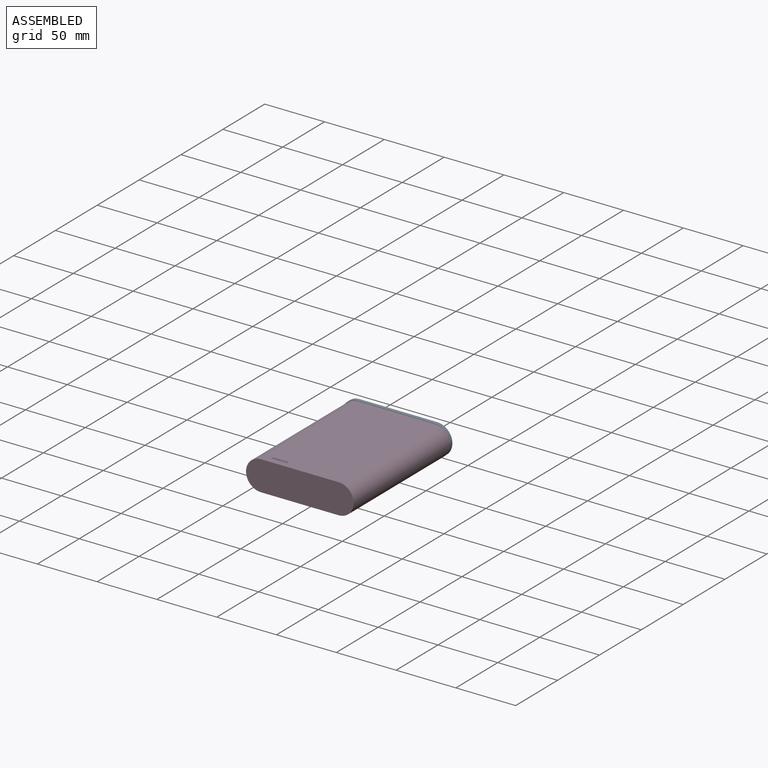
[diagram: assembled view]
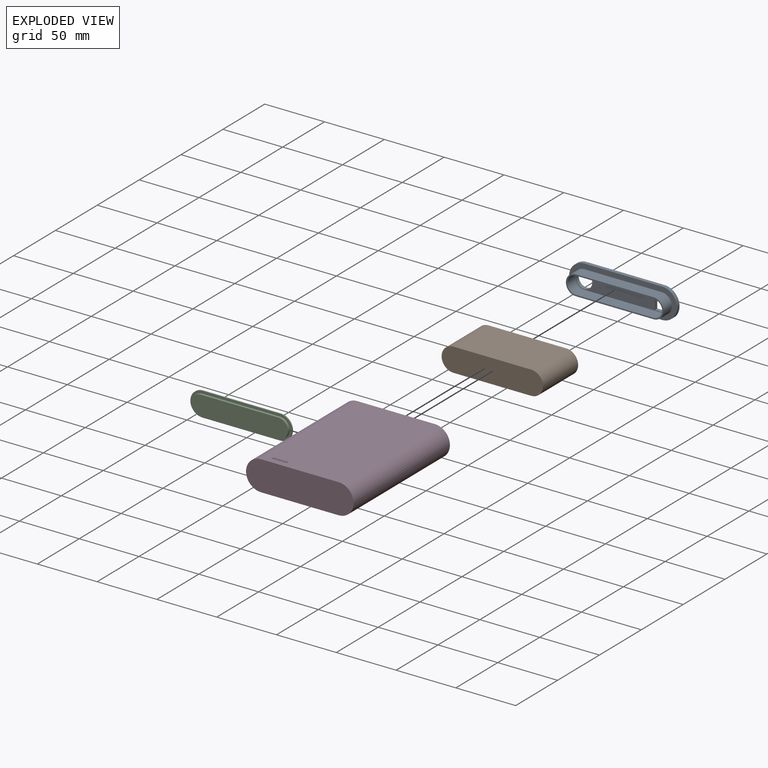
[diagram: exploded view]
GUIDED TOUR — MATED ASSEMBLY (Onshape document f495f942ee6709bd47cc0899, AutoMate assembly f495f942ee6709bd47cc0899_0681cb1969db36b2b03811b4_c53cd33413d2c58a591a0b27_default)

This assembly has 4 components, labeled P0..P3 below (a component is one placed occurrence of a part; the same part can appear more than once), held together by 3 mates. A mate is a constraint between two components; its type names the relative motion it leaves free:
  PLANAR — leaves sliding in the plane through the listed point (normal = the listed direction) and rotation about that normal free.
Axis/direction vectors are unit vectors and 'through' points are millimeter coordinates, both in the assembly's world frame.

MATES
  1. PLANAR "Planar 1": P2 <-> P3, direction (0.000, -1.000, 0.000) through (-5.79, 1.09, 12.92) mm
  2. PLANAR "Planar 3": P0 <-> P3, direction (0.000, -1.000, 0.000) through (26.44, 44.09, 21.46) mm
  3. PLANAR "Planar 2": P1 <-> P2, direction (0.000, -1.000, 0.000) through (-5.79, 2.09, 12.92) mm

ASSEMBLY ORDER
  1. P3 — the base component [order verified]
  2. P2 [order verified]
  3. P1 [order verified]
  4. P0 [order verified]
Order-tag legend:
  [order verified] — this step's position reverses a verified removal order: the component was checked to insert without passing through the ones already placed.

Of the 4 components, 4 carry the full construction recipe — the FeatureScript program that regenerates the part's solid from scratch; the rest are supplied as boundary geometry only.
Each toured component is shown spotlighted twice — in the assembled view, then in the exploded view, where a leader line traces a displaced component back to its assembled socket (saturated green if recipe-attached, orange if geometry-only; every other component desaturated gray) — followed by its recipe or geometry summary and the mates that hold it.
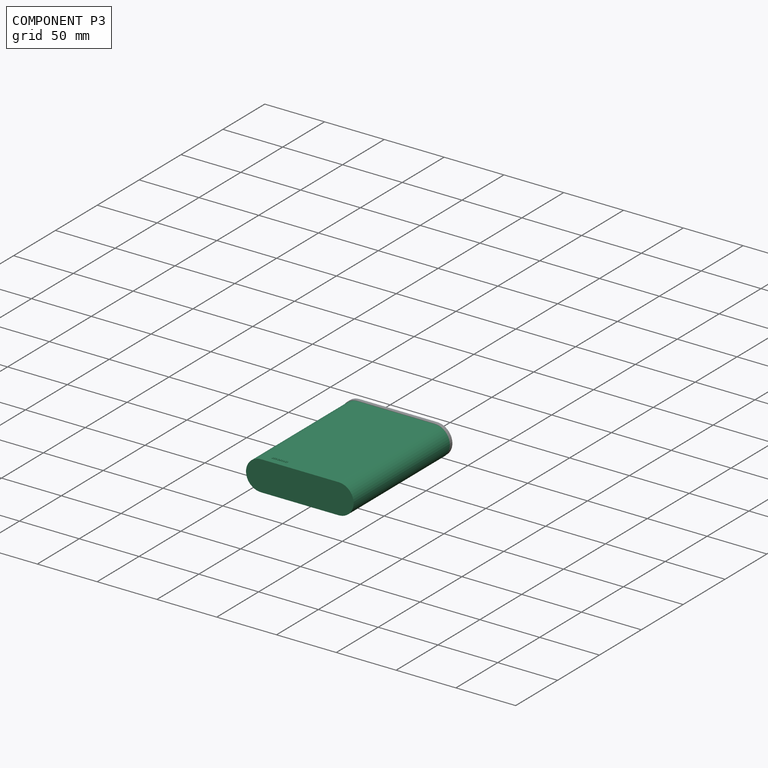
[diagram: component P3 — assembled]
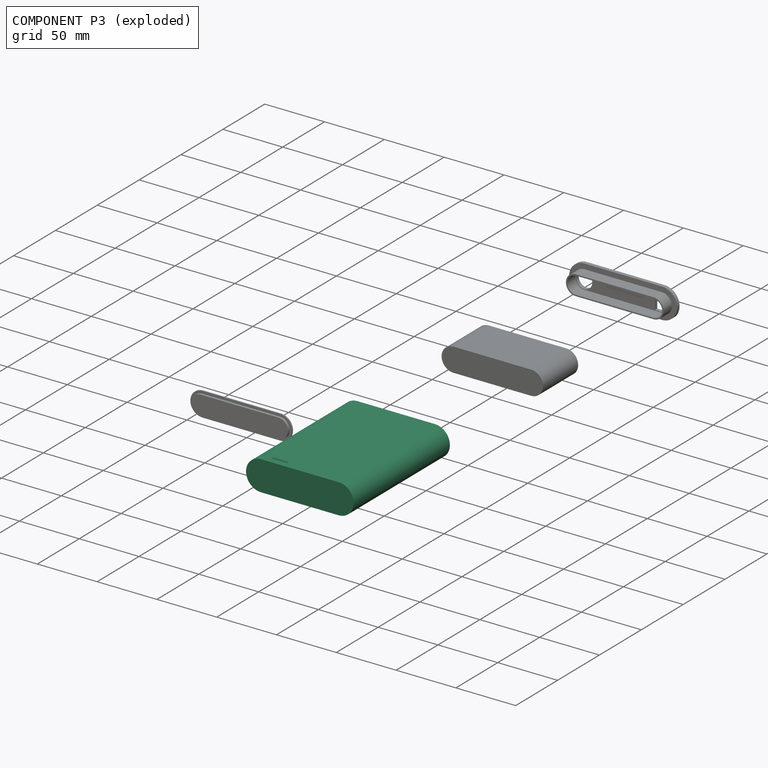
[diagram: component P3 — exploded]
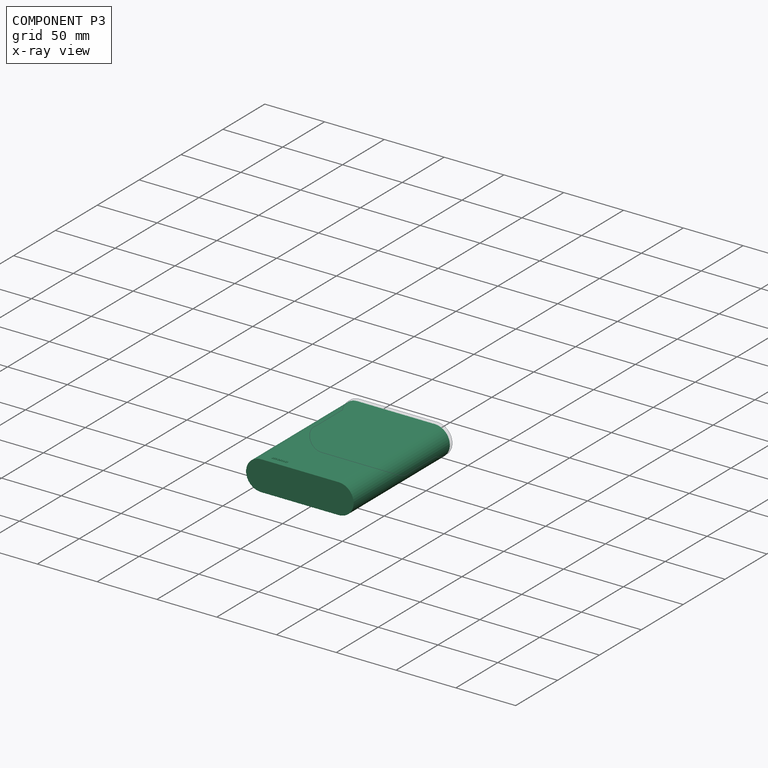
[diagram: component P3 — x-ray view]
COMPONENT P3 — recipe-attached (CADFS 00694882, mesh-verified: the recipe's output STEP matches this component's geometry to below the mesh-comparison resolution (tessellation chordal tolerance ~0.222 mm)).
Held by: PLANAR mate "Planar 1" to P2; PLANAR mate "Planar 3" to P0.
Construction recipe (FeatureScript — the CAD program that rebuilds this solid; sketch coordinates are in the units given by the * unit suffixes, e.g. mm):

FeatureScript 1511;
import(path : "onshape/std/geometry.fs", version : "1511.0");
import(path : "onshape/std/common.fs", version : "1511.0");
const mm = millimeter;
const VERTEX = EntityType.VERTEX;
const EDGE = EntityType.EDGE;
const FACE = EntityType.FACE;
const BODY = EntityType.BODY;
function v(x, y){return vector(x, y);}
function OD(order){return orderDisambiguation(order);}
function OSD(set){return originalSetDisambiguation(set);}
function TD(topology){return topologyDisambiguation(topology);}
function TDD(query){return trueDependencyDisambiguation(query);}
function sQuery(a, b, c) {return sketchEntityQuery(a, b, c);}

annotation { "Feature Type Name" : "Feature", "Feature Type Description" : "" }
export const myFeature = defineFeature(function(context is Context, id is Id, definition is map)
    precondition{}
    {
        {
            var Q0;
            Q0=qCreatedBy(makeId("Front.planeOp"),FACE);
            var sketch = newSketch(context, id + "F0", { "sketchPlane" : qUnion([Q0])});
            skPoint(sketch, "E0.middle", {"position": v(-2.04, -12.42) * mm});
            skLineSegment(sketch, "E1.bottom", {"start": v(-34.54, 0.08) * mm, "end": v(30.46, 0.08) * mm});
            skLineSegment(sketch, "E1.top", {"start": v(-34.54, -24.92) * mm, "end": v(30.46, -24.92) * mm});
            skLineSegment(sketch, "E2.bottom", {"start": v(-34.54, -1.92) * mm, "end": v(30.46, -1.92) * mm});
            skLineSegment(sketch, "E2.top", {"start": v(-34.54, -22.92) * mm, "end": v(30.46, -22.92) * mm});
            skArc(sketch, "E3", {"start": v(30.46, -24.92) * mm, "mid": v(42.96, -12.42) * mm, "end": v(30.46, 0.08) * mm});
            skArc(sketch, "E4", {"start": v(-34.54, -1.92) * mm, "mid": v(-45.04, -12.42) * mm, "end": v(-34.54, -22.92) * mm});
            skArc(sketch, "E5", {"start": v(-34.54, 0.08) * mm, "mid": v(-47.04, -12.42) * mm, "end": v(-34.54, -24.92) * mm});
            skArc(sketch, "E6", {"start": v(30.46, -22.92) * mm, "mid": v(40.96, -12.42) * mm, "end": v(30.46, -1.92) * mm});
            skLineSegment(sketch, "E7", {"start": v(-34.54, -1.92) * mm, "end": v(-34.54, -3.92) * mm});
            skLineSegment(sketch, "E8", {"start": v(-34.54, -3.92) * mm, "end": v(-34.54, -4.42) * mm});
            skLineSegment(sketch, "E9", {"start": v(-34.54, -4.42) * mm, "end": v(30.46, -4.42) * mm});
            skLineSegment(sketch, "E10", {"start": v(-34.54, -3.92) * mm, "end": v(30.46, -3.92) * mm});
            skLineSegment(sketch, "E11", {"start": v(30.46, -22.92) * mm, "end": v(30.46, -20.92) * mm});
            skLineSegment(sketch, "E12", {"start": v(30.46, -20.92) * mm, "end": v(30.46, -20.42) * mm});
            skLineSegment(sketch, "E13", {"start": v(30.46, -20.42) * mm, "end": v(-34.54, -20.42) * mm});
            skLineSegment(sketch, "E14", {"start": v(-34.54, -20.92) * mm, "end": v(30.46, -20.92) * mm});
            skArc(sketch, "E15", {"start": v(-34.54, -4.42) * mm, "mid": v(-42.54, -12.42) * mm, "end": v(-34.54, -20.42) * mm});
            skArc(sketch, "E16", {"start": v(-34.54, -3.92) * mm, "mid": v(-43.04, -12.42) * mm, "end": v(-34.54, -20.92) * mm});
            skArc(sketch, "E17", {"start": v(30.46, -20.42) * mm, "mid": v(38.46, -12.42) * mm, "end": v(30.46, -4.42) * mm});
            skArc(sketch, "E18", {"start": v(30.46, -20.92) * mm, "mid": v(38.96, -12.42) * mm, "end": v(30.46, -3.92) * mm});
            skSolve(sketch);
        }
        {
            var Q0;
            Q0 = qSketchRegion(id + "F0", true);
            extrude(context, id + "F1", {"entities" : qUnion([Q0]), "oppositeDirection" : true, "depth" : 115 * mm, "offsetDistance" : 25 * mm});
        }
        {
            var Q0;
            Q0=makeQuery(id+"F0.imprint","IMPRINT",FACE,{"disambiguationData":[TD([[makeQuery(id+"F0.imprint","IMPRINT",EDGE,{"derivedFrom":sQuery(id+"F0.wireOp",EDGE,"E2.top")}),1.0]])]});
            var Q1;
            Q1=makeQuery(id+"F0.imprint","IMPRINT",FACE,{"disambiguationData":[TD([[makeQuery(id+"F0.imprint","IMPRINT",EDGE,{"derivedFrom":sQuery(id+"F0.wireOp",EDGE,"E2.bottom")}),-1.0]])]});
            var Q2;
            Q2=makeQuery(id+"F0.imprint","IMPRINT",FACE,{"disambiguationData":[TD([[makeQuery(id+"F0.imprint","IMPRINT",EDGE,{"derivedFrom":sQuery(id+"F0.wireOp",EDGE,"E8")}),1.0]])]});
            var Q3;
            Q3=makeQuery(id+"F0.imprint","IMPRINT",FACE,{"disambiguationData":[TD([[makeQuery(id+"F0.imprint","IMPRINT",EDGE,{"derivedFrom":sQuery(id+"F0.wireOp",EDGE,"E8")}),-1.0]])]});
            var Q4;
            Q4=makeQuery(id+"F0.imprint","IMPRINT",FACE,{"disambiguationData":[TD([[makeQuery(id+"F0.imprint","IMPRINT",EDGE,{"derivedFrom":sQuery(id+"F0.wireOp",EDGE,"E9")}),-1.0]])]});
            extrude(context, id + "F2", {"entities" : qUnion([Q0, Q1, Q2, Q3, Q4]), "operationType" : NewBodyOperationType.ADD, "oppositeDirection" : true, "depth" : 2 * mm, "offsetDistance" : 25 * mm});
        }
        {
            var Q0;
            Q0=qCreatedBy(makeId("Front.planeOp"),FACE);
            cPlane(context, id + "F3", {"entities" : qUnion([Q0]), "cplaneType" : CPlaneType.OFFSET, "offset" : 70 * mm, "oppositeDirection" : true, "width" : 150 * mm, "height" : 150 * mm});
        }
        {
            var Q0;
            Q0=qCreatedBy(id+"F3.planeOp",FACE);
            var sketch = newSketch(context, id + "F4", { "sketchPlane" : qUnion([Q0])});
            skPoint(sketch, "E19.middle", {"position": v(-2.04, -12.42) * mm});
            skLineSegment(sketch, "E20.bottom", {"start": v(-34.54, 0.08) * mm, "end": v(30.46, 0.08) * mm});
            skLineSegment(sketch, "E20.top", {"start": v(-34.54, -24.92) * mm, "end": v(30.46, -24.92) * mm});
            skLineSegment(sketch, "E21.bottom", {"start": v(-34.54, -1.92) * mm, "end": v(30.46, -1.92) * mm});
            skLineSegment(sketch, "E21.top", {"start": v(-34.54, -22.92) * mm, "end": v(30.46, -22.92) * mm});
            skArc(sketch, "E22", {"start": v(30.46, -24.92) * mm, "mid": v(42.96, -12.42) * mm, "end": v(30.46, 0.08) * mm});
            skArc(sketch, "E23", {"start": v(-34.54, -1.92) * mm, "mid": v(-45.04, -12.42) * mm, "end": v(-34.54, -22.92) * mm});
            skArc(sketch, "E24", {"start": v(-34.54, 0.08) * mm, "mid": v(-47.04, -12.42) * mm, "end": v(-34.54, -24.92) * mm});
            skArc(sketch, "E25", {"start": v(30.46, -22.92) * mm, "mid": v(40.96, -12.42) * mm, "end": v(30.46, -1.92) * mm});
            skLineSegment(sketch, "E26", {"start": v(-34.54, -1.92) * mm, "end": v(-34.54, -3.92) * mm});
            skLineSegment(sketch, "E27", {"start": v(-34.54, -3.92) * mm, "end": v(-34.54, -4.42) * mm});
            skLineSegment(sketch, "E28", {"start": v(-40.6, -20.46) * mm, "end": v(24.4, -20.46) * mm});
            skLineSegment(sketch, "E29", {"start": v(-34.54, -3.92) * mm, "end": v(30.46, -3.92) * mm});
            skLineSegment(sketch, "E30", {"start": v(30.46, -22.92) * mm, "end": v(30.46, -20.92) * mm});
            skLineSegment(sketch, "E31", {"start": v(30.46, -20.92) * mm, "end": v(30.46, -20.42) * mm});
            skLineSegment(sketch, "E32", {"start": v(30.46, -20.42) * mm, "end": v(-34.54, -20.42) * mm});
            skLineSegment(sketch, "E33", {"start": v(-34.54, -20.92) * mm, "end": v(30.46, -20.92) * mm});
            skArc(sketch, "E34", {"start": v(-34.54, -4.42) * mm, "mid": v(-42.54, -12.42) * mm, "end": v(-34.54, -20.42) * mm});
            skArc(sketch, "E35", {"start": v(-34.54, -3.92) * mm, "mid": v(-43.04, -12.42) * mm, "end": v(-34.54, -20.92) * mm});
            skArc(sketch, "E36", {"start": v(30.46, -20.42) * mm, "mid": v(38.46, -12.42) * mm, "end": v(30.46, -4.42) * mm});
            skArc(sketch, "E37", {"start": v(30.46, -20.92) * mm, "mid": v(38.96, -12.42) * mm, "end": v(30.46, -3.92) * mm});
            skSolve(sketch);
        }
        {
            var Q0;
            Q0=makeQuery(id+"F4.imprint","IMPRINT",FACE,{"disambiguationData":[TD([[makeQuery(id+"F4.imprint","IMPRINT",EDGE,{"derivedFrom":sQuery(id+"F4.wireOp",EDGE,"E21.bottom")}),-1.0]])]});
            var Q1;
            Q1=makeQuery(id+"F4.imprint","IMPRINT",FACE,{"disambiguationData":[TD([[makeQuery(id+"F4.imprint","IMPRINT",EDGE,{"derivedFrom":sQuery(id+"F4.wireOp",EDGE,"E21.top")}),1.0]])]});
            extrude(context, id + "F5", {"entities" : qUnion([Q0, Q1]), "operationType" : NewBodyOperationType.ADD, "oppositeDirection" : true, "depth" : 2 * mm, "offsetDistance" : 25 * mm});
        }
        {
            var Q0;
            Q0=qCreatedBy(makeId("Top.planeOp"),FACE);
            var sketch = newSketch(context, id + "F6", { "sketchPlane" : qUnion([Q0])});
            skText(sketch, "E38", { "text": "memo", "fontName": "OpenSans-Bold.ttf"});
            const initialGuessF6  = {"E38": [-0.02952, 0.005, 1, 0, 0.003]};
            skSetInitialGuess(sketch, initialGuessF6);
            skSolve(sketch);
        }
        {
            var Q0;
            Q0 = qSketchRegion(id + "F6", true);
            extrude(context, id + "F7", {"entities" : qUnion([Q0]), "operationType" : NewBodyOperationType.ADD, "depth" : 0.5 * mm, "offsetDistance" : 25 * mm});
        }
    });
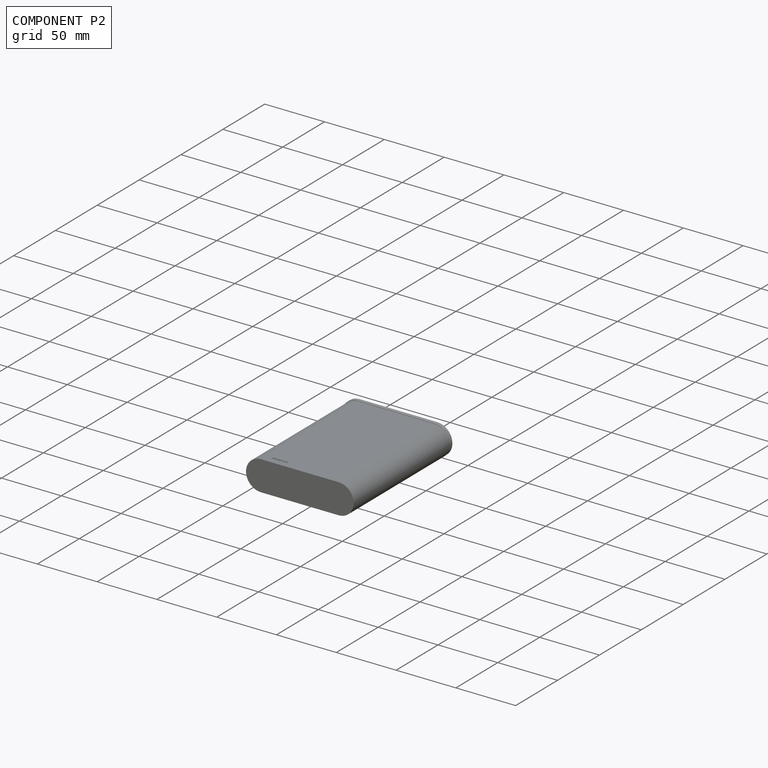
[diagram: component P2 — assembled]
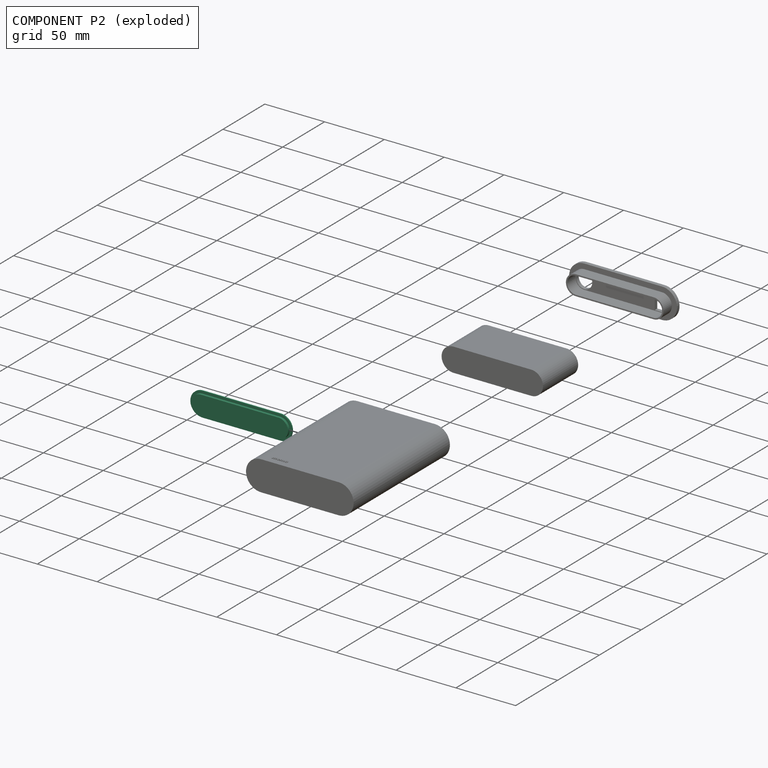
[diagram: component P2 — exploded]
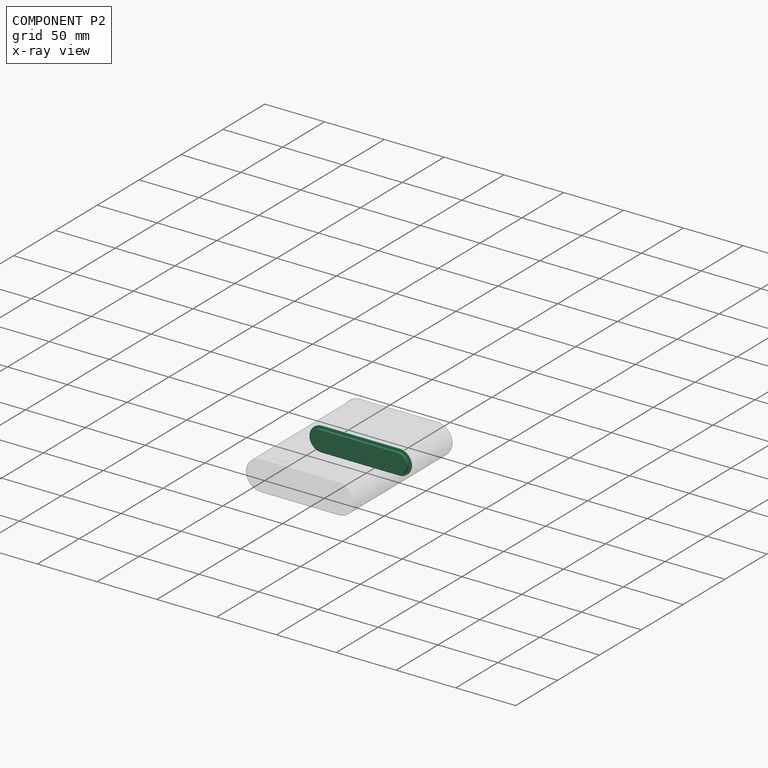
[diagram: component P2 — x-ray view]
COMPONENT P2 — recipe-attached (CADFS 00694883, mesh-verified: the recipe's output STEP matches this component's geometry to below the mesh-comparison resolution (tessellation chordal tolerance ~0.131 mm)).
Held by: PLANAR mate "Planar 1" to P3; PLANAR mate "Planar 2" to P1.
Construction recipe (FeatureScript — the CAD program that rebuilds this solid; sketch coordinates are in the units given by the * unit suffixes, e.g. mm):

FeatureScript 1511;
import(path : "onshape/std/geometry.fs", version : "1511.0");
import(path : "onshape/std/common.fs", version : "1511.0");
const mm = millimeter;
const VERTEX = EntityType.VERTEX;
const EDGE = EntityType.EDGE;
const FACE = EntityType.FACE;
const BODY = EntityType.BODY;
function v(x, y){return vector(x, y);}
function OD(order){return orderDisambiguation(order);}
function OSD(set){return originalSetDisambiguation(set);}
function TD(topology){return topologyDisambiguation(topology);}
function TDD(query){return trueDependencyDisambiguation(query);}
function sQuery(a, b, c) {return sketchEntityQuery(a, b, c);}

annotation { "Feature Type Name" : "Feature", "Feature Type Description" : "" }
export const myFeature = defineFeature(function(context is Context, id is Id, definition is map)
    precondition{}
    {
        {
            var Q0;
            Q0=qCreatedBy(makeId("Front.planeOp"),FACE);
            var sketch = newSketch(context, id + "F0", { "sketchPlane" : qUnion([Q0])});
            skPoint(sketch, "E0.middle", {"position": v(0, 0) * mm});
            skLineSegment(sketch, "E1.bottom", {"start": v(-32.5, 12.5) * mm, "end": v(32.5, 12.5) * mm});
            skLineSegment(sketch, "E1.top", {"start": v(-32.5, -12.5) * mm, "end": v(32.5, -12.5) * mm});
            skLineSegment(sketch, "E2.bottom", {"start": v(-32.5, 10.5) * mm, "end": v(32.5, 10.5) * mm});
            skLineSegment(sketch, "E2.top", {"start": v(-32.5, -10.5) * mm, "end": v(32.5, -10.5) * mm});
            skArc(sketch, "E3", {"start": v(32.5, -12.5) * mm, "mid": v(45, 0) * mm, "end": v(32.5, 12.5) * mm});
            skArc(sketch, "E4", {"start": v(-32.5, 10.5) * mm, "mid": v(-43, 0) * mm, "end": v(-32.5, -10.5) * mm});
            skArc(sketch, "E5", {"start": v(-32.5, 12.5) * mm, "mid": v(-45, 0) * mm, "end": v(-32.5, -12.5) * mm});
            skArc(sketch, "E6", {"start": v(32.5, -10.5) * mm, "mid": v(43, 0) * mm, "end": v(32.5, 10.5) * mm});
            skLineSegment(sketch, "E7", {"start": v(-32.5, 10.5) * mm, "end": v(-32.5, 8.5) * mm});
            skLineSegment(sketch, "E8", {"start": v(-32.5, 8.5) * mm, "end": v(-32.5, 8) * mm});
            skLineSegment(sketch, "E9", {"start": v(-32.5, 8) * mm, "end": v(32.5, 8) * mm});
            skLineSegment(sketch, "E10", {"start": v(-32.5, 8.5) * mm, "end": v(32.5, 8.5) * mm});
            skLineSegment(sketch, "E11", {"start": v(32.5, -10.5) * mm, "end": v(32.5, -8.5) * mm});
            skLineSegment(sketch, "E12", {"start": v(32.5, -8.5) * mm, "end": v(32.5, -8) * mm});
            skLineSegment(sketch, "E13", {"start": v(32.5, -8) * mm, "end": v(-32.5, -8) * mm});
            skLineSegment(sketch, "E14", {"start": v(-32.5, -8.5) * mm, "end": v(32.5, -8.5) * mm});
            skArc(sketch, "E15", {"start": v(-32.5, 8) * mm, "mid": v(-40.5, 0) * mm, "end": v(-32.5, -8) * mm});
            skArc(sketch, "E16", {"start": v(-32.5, 8.5) * mm, "mid": v(-41, 0) * mm, "end": v(-32.5, -8.5) * mm});
            skArc(sketch, "E17", {"start": v(32.5, -8) * mm, "mid": v(40.5, 0) * mm, "end": v(32.5, 8) * mm});
            skArc(sketch, "E18", {"start": v(32.5, -8.5) * mm, "mid": v(41, 0) * mm, "end": v(32.5, 8.5) * mm});
            skLineSegment(sketch, "E19", {"start": v(-32.5, 10.5) * mm, "end": v(-32.5, 10.1) * mm});
            skLineSegment(sketch, "E20", {"start": v(32.5, 10.5) * mm, "end": v(32.5, 10.1) * mm});
            skLineSegment(sketch, "E21", {"start": v(32.5, 10.1) * mm, "end": v(-32.5, 10.1) * mm});
            skLineSegment(sketch, "E22", {"start": v(32.5, -10.5) * mm, "end": v(32.5, -10.1) * mm});
            skLineSegment(sketch, "E23", {"start": v(-32.5, -10.5) * mm, "end": v(-32.5, -10.1) * mm});
            skLineSegment(sketch, "E24", {"start": v(-32.5, -10.1) * mm, "end": v(32.5, -10.1) * mm});
            skArc(sketch, "E25", {"start": v(32.5, -10.1) * mm, "mid": v(42.6, 0) * mm, "end": v(32.5, 10.1) * mm});
            skArc(sketch, "E26", {"start": v(-32.5, 10.1) * mm, "mid": v(-42.6, 0) * mm, "end": v(-32.5, -10.1) * mm});
            skSolve(sketch);
        }
        {
            var Q0;
            {var subQ3=sQuery(id+"F0.wireOp",EDGE,"E14");Q0=makeQuery(id+"F0.imprint","IMPRINT",FACE,{"disambiguationData":[TD([[makeQuery(id+"F0.imprint","IMPRINT",EDGE,{"derivedFrom":subQ3}),-1.0]])]});}
            var Q1;
            {var subQ1=sQuery(id+"F0.wireOp",EDGE,"E10");Q1=makeQuery(id+"F0.imprint","IMPRINT",FACE,{"disambiguationData":[TD([[makeQuery(id+"F0.imprint","IMPRINT",EDGE,{"derivedFrom":subQ1}),1.0]])]});}
            var Q2;
            Q2=makeQuery(id+"F0.imprint","IMPRINT",FACE,{"disambiguationData":[TD([[makeQuery(id+"F0.imprint","IMPRINT",EDGE,{"derivedFrom":sQuery(id+"F0.wireOp",EDGE,"E8")}),1.0]])]});
            var Q3;
            Q3=makeQuery(id+"F0.imprint","IMPRINT",FACE,{"disambiguationData":[TD([[makeQuery(id+"F0.imprint","IMPRINT",EDGE,{"derivedFrom":sQuery(id+"F0.wireOp",EDGE,"E8")}),-1.0]])]});
            extrude(context, id + "F1", {"entities" : qUnion([Q0, Q1, Q2, Q3]), "depth" : 1 * mm, "offsetDistance" : 25 * mm});
        }
        {
            var Q0;
            Q0=makeQuery(id+"F0.imprint","IMPRINT",FACE,{"disambiguationData":[TD([[makeQuery(id+"F0.imprint","IMPRINT",EDGE,{"derivedFrom":sQuery(id+"F0.wireOp",EDGE,"E9")}),-1.0]])]});
            extrude(context, id + "F2", {"entities" : qUnion([Q0]), "operationType" : NewBodyOperationType.ADD, "depth" : 3 * mm, "offsetDistance" : 25 * mm});
        }
    });
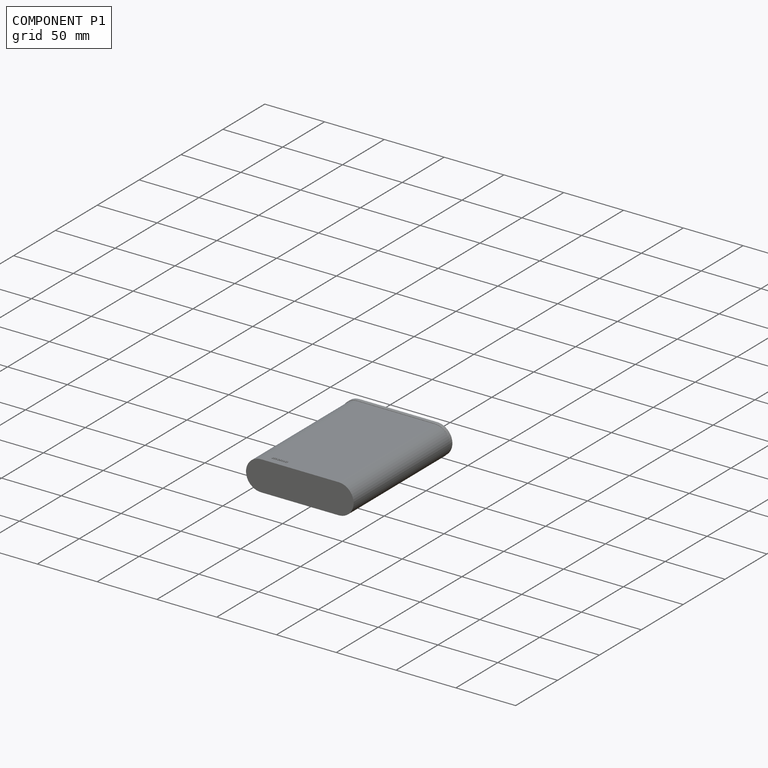
[diagram: component P1 — assembled]
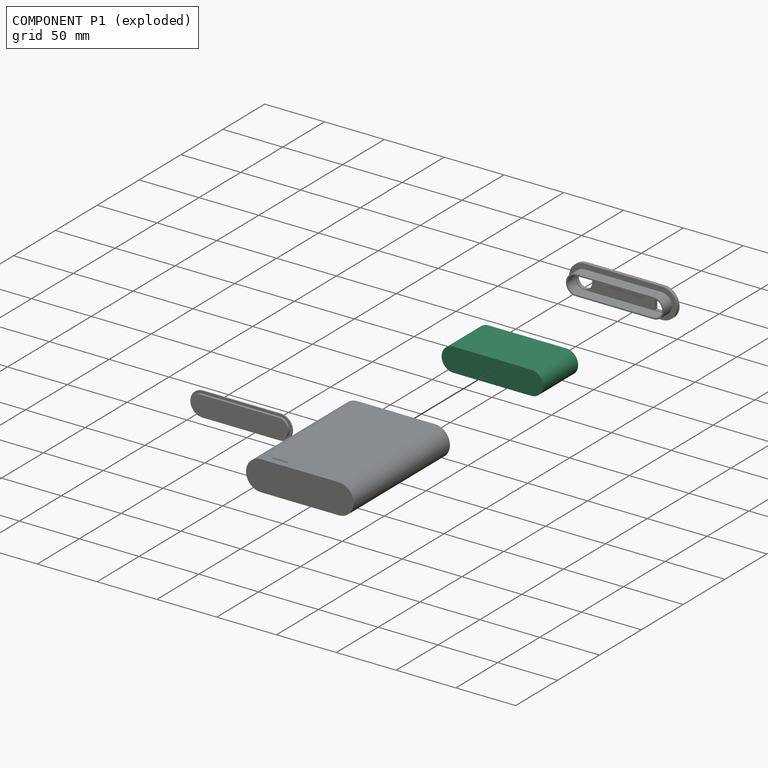
[diagram: component P1 — exploded]
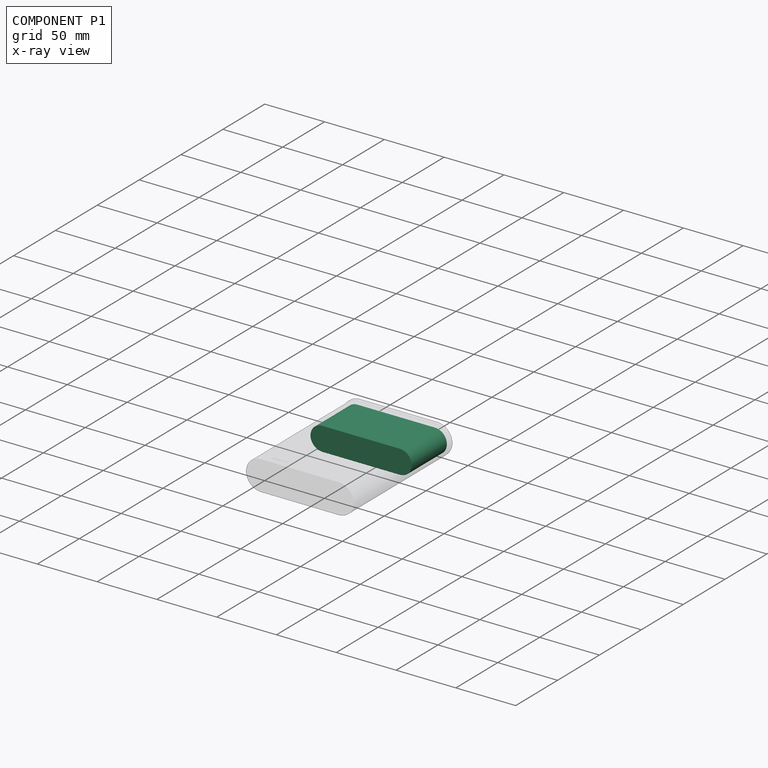
[diagram: component P1 — x-ray view]
COMPONENT P1 — recipe-attached (CADFS 00694884, mesh-verified: the recipe's output STEP matches this component's geometry to below the mesh-comparison resolution (tessellation chordal tolerance ~0.145 mm)).
Held by: PLANAR mate "Planar 2" to P2.
Construction recipe (FeatureScript — the CAD program that rebuilds this solid; sketch coordinates are in the units given by the * unit suffixes, e.g. mm):

FeatureScript 1511;
import(path : "onshape/std/geometry.fs", version : "1511.0");
import(path : "onshape/std/common.fs", version : "1511.0");
const mm = millimeter;
const VERTEX = EntityType.VERTEX;
const EDGE = EntityType.EDGE;
const FACE = EntityType.FACE;
const BODY = EntityType.BODY;
function v(x, y){return vector(x, y);}
function OD(order){return orderDisambiguation(order);}
function OSD(set){return originalSetDisambiguation(set);}
function TD(topology){return topologyDisambiguation(topology);}
function TDD(query){return trueDependencyDisambiguation(query);}
function sQuery(a, b, c) {return sketchEntityQuery(a, b, c);}

annotation { "Feature Type Name" : "Feature", "Feature Type Description" : "" }
export const myFeature = defineFeature(function(context is Context, id is Id, definition is map)
    precondition{}
    {
        {
            var Q0;
            Q0=qCreatedBy(makeId("Front.planeOp"),FACE);
            var sketch = newSketch(context, id + "F0", { "sketchPlane" : qUnion([Q0])});
            skPoint(sketch, "E0.middle", {"position": v(0, 0) * mm});
            skLineSegment(sketch, "E1.bottom", {"start": v(-32.5, 12.5) * mm, "end": v(32.5, 12.5) * mm});
            skLineSegment(sketch, "E1.top", {"start": v(-32.5, -12.5) * mm, "end": v(32.5, -12.5) * mm});
            skLineSegment(sketch, "E2.bottom", {"start": v(-32.5, 10.5) * mm, "end": v(32.5, 10.5) * mm});
            skLineSegment(sketch, "E2.top", {"start": v(-32.5, -10.5) * mm, "end": v(32.5, -10.5) * mm});
            skArc(sketch, "E3", {"start": v(32.5, -12.5) * mm, "mid": v(45, 0) * mm, "end": v(32.5, 12.5) * mm});
            skArc(sketch, "E4", {"start": v(-32.5, 10.5) * mm, "mid": v(-43, 0) * mm, "end": v(-32.5, -10.5) * mm});
            skArc(sketch, "E5", {"start": v(-32.5, 12.5) * mm, "mid": v(-45, 0) * mm, "end": v(-32.5, -12.5) * mm});
            skArc(sketch, "E6", {"start": v(32.5, -10.5) * mm, "mid": v(43, 0) * mm, "end": v(32.5, 10.5) * mm});
            skLineSegment(sketch, "E7", {"start": v(-32.5, 10.5) * mm, "end": v(-32.5, 8.5) * mm});
            skLineSegment(sketch, "E8", {"start": v(-32.5, 8.5) * mm, "end": v(-32.5, 8) * mm});
            skLineSegment(sketch, "E9", {"start": v(-32.5, 8) * mm, "end": v(32.5, 8) * mm});
            skLineSegment(sketch, "E10", {"start": v(-32.5, 8.5) * mm, "end": v(32.5, 8.5) * mm});
            skLineSegment(sketch, "E11", {"start": v(32.5, -10.5) * mm, "end": v(32.5, -8.5) * mm});
            skLineSegment(sketch, "E12", {"start": v(32.5, -8.5) * mm, "end": v(32.5, -8) * mm});
            skLineSegment(sketch, "E13", {"start": v(32.5, -8) * mm, "end": v(-32.5, -8) * mm});
            skLineSegment(sketch, "E14", {"start": v(-32.5, -8.5) * mm, "end": v(32.5, -8.5) * mm});
            skArc(sketch, "E15", {"start": v(-32.5, 8) * mm, "mid": v(-40.5, 0) * mm, "end": v(-32.5, -8) * mm});
            skArc(sketch, "E16", {"start": v(-32.5, 8.5) * mm, "mid": v(-41, 0) * mm, "end": v(-32.5, -8.5) * mm});
            skArc(sketch, "E17", {"start": v(32.5, -8) * mm, "mid": v(40.5, 0) * mm, "end": v(32.5, 8) * mm});
            skArc(sketch, "E18", {"start": v(32.5, -8.5) * mm, "mid": v(41, 0) * mm, "end": v(32.5, 8.5) * mm});
            skLineSegment(sketch, "E19", {"start": v(-32.5, 10.5) * mm, "end": v(-32.5, 9.9) * mm});
            skLineSegment(sketch, "E20", {"start": v(32.5, 10.5) * mm, "end": v(32.5, 9.9) * mm});
            skLineSegment(sketch, "E21", {"start": v(32.5, 9.9) * mm, "end": v(-32.5, 9.9) * mm});
            skLineSegment(sketch, "E22", {"start": v(32.5, -10.5) * mm, "end": v(32.5, -9.9) * mm});
            skLineSegment(sketch, "E23", {"start": v(-32.5, -10.5) * mm, "end": v(-32.5, -9.9) * mm});
            skLineSegment(sketch, "E24", {"start": v(-32.5, -9.9) * mm, "end": v(32.5, -9.9) * mm});
            skArc(sketch, "E25", {"start": v(32.5, -9.9) * mm, "mid": v(42.4, 0) * mm, "end": v(32.5, 9.9) * mm});
            skArc(sketch, "E26", {"start": v(-32.5, 9.9) * mm, "mid": v(-42.4, 0) * mm, "end": v(-32.5, -9.9) * mm});
            skSolve(sketch);
        }
        {
            var Q0;
            Q0=makeQuery(id+"F0.imprint","IMPRINT",FACE,{"disambiguationData":[TD([[makeQuery(id+"F0.imprint","IMPRINT",EDGE,{"derivedFrom":sQuery(id+"F0.wireOp",EDGE,"E9")}),-1.0]])]});
            var Q1;
            Q1=makeQuery(id+"F0.imprint","IMPRINT",FACE,{"disambiguationData":[TD([[makeQuery(id+"F0.imprint","IMPRINT",EDGE,{"derivedFrom":sQuery(id+"F0.wireOp",EDGE,"E8")}),1.0]])]});
            var Q2;
            Q2=makeQuery(id+"F0.imprint","IMPRINT",FACE,{"disambiguationData":[TD([[makeQuery(id+"F0.imprint","IMPRINT",EDGE,{"derivedFrom":sQuery(id+"F0.wireOp",EDGE,"E8")}),-1.0]])]});
            extrude(context, id + "F1", {"entities" : qUnion([Q0, Q1, Q2]), "depth" : 1.5 * mm, "offsetDistance" : 25 * mm});
        }
        {
            var Q0;
            {var subQ1=sQuery(id+"F0.wireOp",EDGE,"E10");Q0=makeQuery(id+"F0.imprint","IMPRINT",FACE,{"disambiguationData":[TD([[makeQuery(id+"F0.imprint","IMPRINT",EDGE,{"derivedFrom":subQ1}),1.0]])]});}
            var Q1;
            {var subQ3=sQuery(id+"F0.wireOp",EDGE,"E14");Q1=makeQuery(id+"F0.imprint","IMPRINT",FACE,{"disambiguationData":[TD([[makeQuery(id+"F0.imprint","IMPRINT",EDGE,{"derivedFrom":subQ3}),-1.0]])]});}
            extrude(context, id + "F2", {"entities" : qUnion([Q0, Q1]), "operationType" : NewBodyOperationType.ADD, "depth" : 42 * mm, "offsetDistance" : 25 * mm});
        }
    });
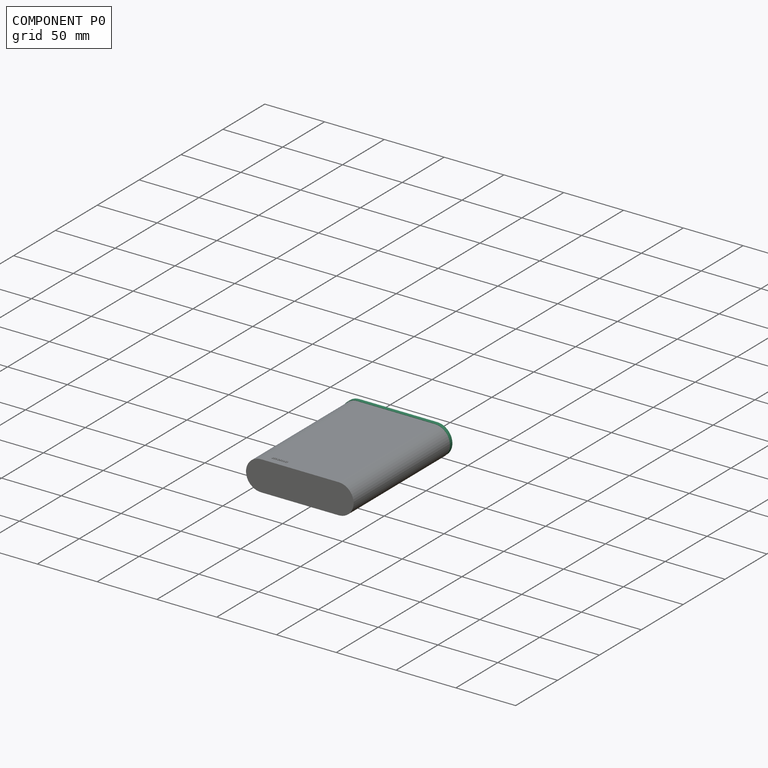
[diagram: component P0 — assembled]
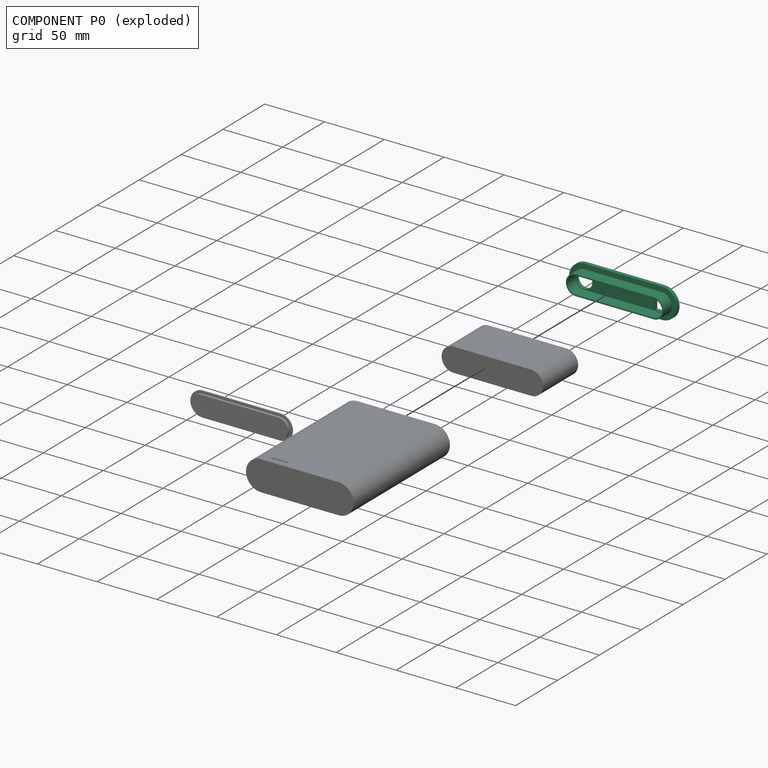
[diagram: component P0 — exploded]
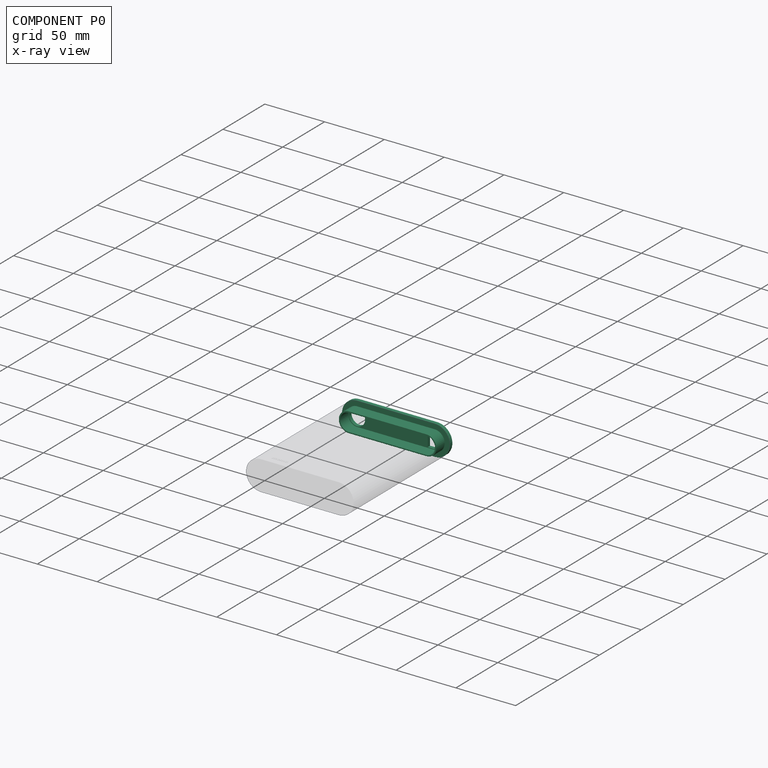
[diagram: component P0 — x-ray view]
COMPONENT P0 — recipe-attached (CADFS 00694880, mesh-verified: the recipe's output STEP matches this component's geometry to below the mesh-comparison resolution (tessellation chordal tolerance ~0.142 mm)).
Held by: PLANAR mate "Planar 3" to P3.
Construction recipe (FeatureScript — the CAD program that rebuilds this solid; sketch coordinates are in the units given by the * unit suffixes, e.g. mm):

FeatureScript 1511;
import(path : "onshape/std/geometry.fs", version : "1511.0");
import(path : "onshape/std/common.fs", version : "1511.0");
const mm = millimeter;
const VERTEX = EntityType.VERTEX;
const EDGE = EntityType.EDGE;
const FACE = EntityType.FACE;
const BODY = EntityType.BODY;
function v(x, y){return vector(x, y);}
function OD(order){return orderDisambiguation(order);}
function OSD(set){return originalSetDisambiguation(set);}
function TD(topology){return topologyDisambiguation(topology);}
function TDD(query){return trueDependencyDisambiguation(query);}
function sQuery(a, b, c) {return sketchEntityQuery(a, b, c);}

annotation { "Feature Type Name" : "Feature", "Feature Type Description" : "" }
export const myFeature = defineFeature(function(context is Context, id is Id, definition is map)
    precondition{}
    {
        {
            var Q0;
            Q0=qCreatedBy(makeId("Front.planeOp"),FACE);
            var sketch = newSketch(context, id + "F0", { "sketchPlane" : qUnion([Q0])});
            skLineSegment(sketch, "E0.bottom", {"start": v(19.83, -12.27) * mm, "end": v(-45.17, -12.27) * mm});
            skLineSegment(sketch, "E0.top", {"start": v(19.83, 12.98) * mm, "end": v(-45.17, 12.98) * mm});
            skArc(sketch, "E1", {"start": v(-45.17, 12.98) * mm, "mid": v(-57.8, 0.36) * mm, "end": v(-45.17, -12.27) * mm});
            skArc(sketch, "E2", {"start": v(19.83, -12.27) * mm, "mid": v(32.46, 0.36) * mm, "end": v(19.83, 12.98) * mm});
            skCircle(sketch, "E3", {"center": v(-45.17, 0.36) * mm, "radius": 6.7 * mm});
            skLineSegment(sketch, "E4", {"start": v(19.83, 7.6) * mm, "end": v(12.83, 7.6) * mm});
            skLineSegment(sketch, "E5", {"start": v(12.83, 7.6) * mm, "end": v(19.83, 7.6) * mm});
            skLineSegment(sketch, "E6", {"start": v(19.77, -6.9) * mm, "end": v(12.83, -6.9) * mm});
            skLineSegment(sketch, "E7", {"start": v(19.83, -9.14) * mm, "end": v(19.83, -9.64) * mm});
            skLineSegment(sketch, "E8", {"start": v(13.77, -6.9) * mm, "end": v(19.77, -6.9) * mm});
            skLineSegment(sketch, "E9", {"start": v(19.83, 12.98) * mm, "end": v(19.83, 8.68) * mm});
            skLineSegment(sketch, "E10", {"start": v(19.83, 8.68) * mm, "end": v(-45.17, 8.68) * mm});
            skLineSegment(sketch, "E11", {"start": v(-45.17, -12.27) * mm, "end": v(-45.17, -7.97) * mm});
            skLineSegment(sketch, "E12", {"start": v(-45.17, -7.97) * mm, "end": v(19.77, -7.97) * mm});
            skLineSegment(sketch, "E13", {"start": v(19.77, -6.9) * mm, "end": v(-45.17, -6.9) * mm});
            skLineSegment(sketch, "E14", {"start": v(19.83, 7.6) * mm, "end": v(-45.17, 7.6) * mm});
            skArc(sketch, "E15", {"start": v(-45.17, 8.68) * mm, "mid": v(-53.5, 0.36) * mm, "end": v(-45.17, -7.97) * mm});
            skArc(sketch, "E16", {"start": v(-45.17, 7.6) * mm, "mid": v(-52.42, 0.36) * mm, "end": v(-45.17, -6.9) * mm});
            skLineSegment(sketch, "E17", {"start": v(19.83, 12.98) * mm, "end": v(19.83, -12.27) * mm});
            skPoint(sketch, "E18.middle", {"position": v(16.83, 0.36) * mm});
            skLineSegment(sketch, "E19", {"start": v(19.83, 0.36) * mm, "end": v(19.83, 7.1) * mm});
            skLineSegment(sketch, "E20", {"start": v(19.83, 7.1) * mm, "end": v(13.83, 7.1) * mm});
            skLineSegment(sketch, "E21", {"start": v(13.83, 7.1) * mm, "end": v(13.83, -6.4) * mm});
            skLineSegment(sketch, "E22", {"start": v(13.83, -6.4) * mm, "end": v(19.83, -6.4) * mm});
            skLineSegment(sketch, "E23", {"start": v(19.83, -6.4) * mm, "end": v(19.83, 7.1) * mm});
            skArc(sketch, "E24", {"start": v(19.77, -7.97) * mm, "mid": v(28.1, 0.33) * mm, "end": v(19.83, 8.68) * mm});
            skArc(sketch, "E25", {"start": v(19.77, -6.9) * mm, "mid": v(27.02, 0.33) * mm, "end": v(19.83, 7.6) * mm});
            skSolve(sketch);
        }
        {
            var Q0;
            {var subQ7=sQuery(id+"F0.wireOp",EDGE,"51b1c564-5096-461f-b846-86fedcb4dc8d");Q0=makeQuery(id+"F0.imprint","IMPRINT",FACE,{"disambiguationData":[TD([[makeQuery(id+"F0.imprint","IMPRINT",EDGE,{"derivedFrom":subQ7}),-1.0]])]});}
            var Q1;
            {var subQ2=sQuery(id+"F0.wireOp",EDGE,"E10");Q1=makeQuery(id+"F0.imprint","IMPRINT",FACE,{"disambiguationData":[TD([[makeQuery(id+"F0.imprint","IMPRINT",EDGE,{"derivedFrom":subQ2}),1.0]])]});}
            var Q2;
            {var subQ1=sQuery(id+"F0.wireOp",EDGE,"E17");var subQ3=sQuery(id+"F0.wireOp",EDGE,"E25");var subQ5=makeQuery(id+"F0.imprint","INTERSECT",VERTEX,{"derivedFrom":[subQ1,subQ3]});Q2=makeQuery(id+"F0.imprint","IMPRINT",FACE,{"disambiguationData":[TD([[makeQuery(id+"F0.imprint","IMPRINT",EDGE,{"disambiguationData":[TD([[subQ5,-1.0]])],"derivedFrom":subQ1}),1.0]])]});}
            var Q3;
            Q3=sQuery(id+"F0.wireOp",EDGE,"E0.bottom");
            var Q4;
            Q4=sQuery(id+"F0.wireOp",EDGE,"E0.top");
            var Q5;
            Q5=sQuery(id+"F0.wireOp",EDGE,"E1");
            var Q6;
            Q6=sQuery(id+"F0.wireOp",EDGE,"E2");
            var Q7;
            Q7=sQuery(id+"F0.wireOp",EDGE,"b6ad355e-3722-486a-9c23-38b4642f48d5");
            var Q8;
            Q8=sQuery(id+"F0.wireOp",EDGE,"a5da55c1-d781-4ce2-bdd2-e8d78816f261");
            var Q9;
            Q9=sQuery(id+"F0.wireOp",EDGE,"4fcaac24-b5ef-42e9-b2ac-9cf3cb188516");
            var Q10;
            Q10=sQuery(id+"F0.wireOp",EDGE,"628284f1-229c-46e7-b658-0923db650eb1");
            var Q11;
            Q11=sQuery(id+"F0.wireOp",EDGE,"ba1896cc-4fff-441c-831c-8a4a6f83a2d8");
            var Q12;
            Q12=sQuery(id+"F0.wireOp",EDGE,"E3");
            var Q13;
            Q13=sQuery(id+"F0.wireOp",EDGE,"51b1c564-5096-461f-b846-86fedcb4dc8d");
            var Q14;
            Q14=sQuery(id+"F0.wireOp",EDGE,"6838ca93-eeed-4bdc-afd8-a1c92112be62");
            var Q15;
            Q15=sQuery(id+"F0.wireOp",EDGE,"796d279d-d692-426c-9acc-43a315af8945");
            var Q16;
            Q16=sQuery(id+"F0.wireOp",EDGE,"468f62cb-83c4-4c1b-bd70-739f3564f4d7");
            var Q17;
            Q17=sQuery(id+"F0.wireOp",EDGE,"63cf6457-4c57-4bea-b750-75ee11e2a53f");
            var Q18;
            Q18=sQuery(id+"F0.wireOp",EDGE,"e143a53b-bbf0-4694-9fd8-2c268869048d");
            var Q19;
            Q19=sQuery(id+"F0.wireOp",EDGE,"8f19fd11-0280-4987-803d-bc3ecc1a1e02");
            var Q20;
            Q20=sQuery(id+"F0.wireOp",EDGE,"0b7d8dbc-4690-4e60-8a32-c7cd4177de49");
            var Q21;
            Q21=sQuery(id+"F0.wireOp",EDGE,"E4");
            var Q22;
            Q22=sQuery(id+"F0.wireOp",EDGE,"E5");
            var Q23;
            Q23=sQuery(id+"F0.wireOp",EDGE,"E6");
            var Q24;
            Q24=sQuery(id+"F0.wireOp",EDGE,"3e0e09e5-fe4f-48ed-a0ee-ccac3d4f6891");
            var Q25;
            Q25=sQuery(id+"F0.wireOp",EDGE,"3b197aad-72e7-4fa1-b03a-ef16a77734ec");
            var Q26;
            Q26=sQuery(id+"F0.wireOp",EDGE,"6ab73076-d2da-4c30-87e8-51d7be6df72a.MirrorCS");
            var Q27;
            Q27=sQuery(id+"F0.wireOp",EDGE,"c5502019-c56d-4b6d-b257-b047b59135ca.MirrorCS");
            var Q28;
            Q28=sQuery(id+"F0.wireOp",EDGE,"cbb3f339-5f20-4423-a51a-b7cd7ab5af59.MirrorCS");
            var Q29;
            Q29=sQuery(id+"F0.wireOp",EDGE,"8404de06-89ae-498f-9464-fb25be53e3e3");
            var Q30;
            Q30=sQuery(id+"F0.wireOp",EDGE,"9b76d2de-d04a-4311-8d99-8182bba60f0b");
            var Q31;
            Q31=sQuery(id+"F0.wireOp",EDGE,"E7");
            var Q32;
            Q32=sQuery(id+"F0.wireOp",EDGE,"2683bf00-0369-4066-96d3-9205ea885697.MirrorCS");
            var Q33;
            Q33=sQuery(id+"F0.wireOp",EDGE,"ee40db52-ae8e-40cc-8f7a-23774a43cab0.MirrorCS");
            var Q34;
            Q34=sQuery(id+"F0.wireOp",EDGE,"0a45dc18-5933-418c-8bf1-254a3733ed20");
            var Q35;
            Q35=sQuery(id+"F0.wireOp",EDGE,"7b2331a8-54ae-4d73-9d9e-4a88b023b145");
            var Q36;
            Q36=sQuery(id+"F0.wireOp",EDGE,"46809f8f-a187-47ef-8e81-a9075e9b308d.MirrorCS");
            var Q37;
            Q37=sQuery(id+"F0.wireOp",EDGE,"0649f472-9b76-41c3-96ee-ae1afe34412a");
            var Q38;
            Q38=sQuery(id+"F0.wireOp",EDGE,"a2df31e1-6808-4ee2-9b5d-6a2e88761a76");
            var Q39;
            Q39=sQuery(id+"F0.wireOp",EDGE,"2d52243e-6465-4981-bdd7-aa54638a918c");
            var Q40;
            Q40=sQuery(id+"F0.wireOp",EDGE,"b4da52d1-afe5-4245-a78e-3e48a569191b");
            var Q41;
            Q41=sQuery(id+"F0.wireOp",EDGE,"8c3a6a5f-41b5-48e2-9df0-6684c709de04");
            var Q42;
            Q42=sQuery(id+"F0.wireOp",EDGE,"E8");
            var Q43;
            Q43=sQuery(id+"F0.wireOp",EDGE,"d9717cfd-c6c4-409a-8949-93d3820997f8");
            var Q44;
            Q44=sQuery(id+"F0.wireOp",EDGE,"2369be42-2912-4fa0-8bef-dca674388a07");
            var Q45;
            Q45=sQuery(id+"F0.wireOp",EDGE,"e8eba461-00d1-4ebe-b0c6-392e3b66f3ab");
            var Q46;
            Q46=sQuery(id+"F0.wireOp",EDGE,"d517c2e4-4dd1-45a4-8201-fd70a56d4ab2.MirrorCS");
            var Q47;
            Q47=sQuery(id+"F0.wireOp",EDGE,"d764d433-f32b-435e-9f91-17333f89f89e.MirrorCS");
            var Q48;
            Q48=sQuery(id+"F0.wireOp",EDGE,"f6749d55-f9eb-413d-964b-c2a5628265d1");
            var Q49;
            Q49=sQuery(id+"F0.wireOp",EDGE,"f5be3f5e-2788-4409-a526-137a88d8d8ef");
            var Q50;
            Q50=sQuery(id+"F0.wireOp",EDGE,"0f684251-520a-44b1-957b-e27579d4a1f0");
            var Q51;
            Q51=sQuery(id+"F0.wireOp",EDGE,"c7a5c39c-1b0b-4a4a-88da-ec04e7e83813.MirrorCS");
            var Q52;
            Q52=sQuery(id+"F0.wireOp",EDGE,"7b29877e-e8ec-47ef-aae3-1ecf5dd4d296");
            var Q53;
            Q53=sQuery(id+"F0.wireOp",EDGE,"60b2dc27-ba91-47fd-8fbf-82972dfe182a");
            var Q54;
            Q54=sQuery(id+"F0.wireOp",EDGE,"6d5d4693-0161-4eca-bdc4-8bd8034641af.MirrorCS");
            var Q55;
            Q55=sQuery(id+"F0.wireOp",EDGE,"80347630-f4fb-4bff-a239-73b94e31b8cd");
            var Q56;
            Q56=sQuery(id+"F0.wireOp",EDGE,"1c31f251-1da2-4dbe-a835-6572f029e871");
            var Q57;
            Q57=sQuery(id+"F0.wireOp",EDGE,"d073e572-fe62-4dc8-aaa2-b6fb507d7334");
            var Q58;
            Q58=sQuery(id+"F0.wireOp",EDGE,"72bd91f6-9f3a-4d47-baf1-9d0a996ad9bc.MirrorCS");
            var Q59;
            Q59=sQuery(id+"F0.wireOp",EDGE,"fa604bde-742b-428d-bc45-14590a00dffd.MirrorCS");
            var Q60;
            Q60=sQuery(id+"F0.wireOp",EDGE,"93ab860a-2c70-4860-aebc-eebb65ccb867.MirrorCS");
            extrude(context, id + "F1", {"entities" : qUnion([Q0, Q1, Q2]), "surfaceEntities" : qUnion([Q3, Q4, Q5, Q6, Q7, Q8, Q9, Q10, Q11, Q12, Q13, Q14, Q15, Q16, Q17, Q18, Q19, Q20, Q21, Q22, Q23, Q24, Q25, Q26, Q27, Q28, Q29, Q30, Q31, Q32, Q33, Q34, Q35, Q36, Q37, Q38, Q39, Q40, Q41, Q42, Q43, Q44, Q45, Q46, Q47, Q48, Q49, Q50, Q51, Q52, Q53, Q54, Q55, Q56, Q57, Q58, Q59, Q60]), "depth" : 13 * mm, "offsetDistance" : 25 * mm});
        }
        {
            var Q0;
            {var subQ3=sQuery(id+"F0.wireOp",EDGE,"E2");var subQ4=sQuery(id+"F0.wireOp",EDGE,"E0.bottom");Q0=qUnion([makeQuery(id+"F0.imprint","IMPRINT",FACE,{"disambiguationData":[TD([[makeQuery(id+"F0.imprint","IMPRINT",EDGE,{"derivedFrom":subQ4}),-1.0]])]}),makeQuery(id+"F0.imprint","IMPRINT",FACE,{"disambiguationData":[TD([[makeQuery(id+"F0.imprint","IMPRINT",EDGE,{"derivedFrom":sQuery(id+"F0.wireOp",EDGE,"E0.top")}),1.0]])]}),makeQuery(id+"F0.imprint","IMPRINT",FACE,{"disambiguationData":[TD([[makeQuery(id+"F0.imprint","IMPRINT",EDGE,{"derivedFrom":subQ3}),1.0]])]})]);}
            var Q1;
            Q1=makeQuery(id+"F0.imprint","IMPRINT",FACE,{"disambiguationData":[TD([[makeQuery(id+"F0.imprint","IMPRINT",EDGE,{"derivedFrom":sQuery(id+"F0.wireOp",EDGE,"E3")}),-1.0]])]});
            var Q2;
            {var subQ1=sQuery(id+"F0.wireOp",EDGE,"E17");var subQ6=makeQuery(id+"F0.imprint","IMPRINT",VERTEX,{"derivedFrom":subQ1});Q2=makeQuery(id+"F0.imprint","IMPRINT",FACE,{"disambiguationData":[TD([[makeQuery(id+"F0.imprint","IMPRINT",EDGE,{"disambiguationData":[TD([[subQ6,1.0]])],"derivedFrom":subQ1}),1.0]])]});}
            extrude(context, id + "F2", {"entities" : qUnion([Q0, Q1, Q2]), "operationType" : NewBodyOperationType.ADD, "depth" : 3 * mm, "offsetDistance" : 25 * mm});
        }
    });
PROVENANCE & LICENSES
Assembly (occurrences, transforms, mates, per-part STEP geometry): AutoMate dataset, Zenodo record 7776208, CC0.
Construction recipes: CADFS (HuggingFace VladPyatov/CADFS, CC-BY-4.0, layered over the ABC dataset), FeatureScript reconstruction programs keyed by ABC model id.
Join: ABC meta listings map ABC model id -> Onshape documentId; within a shared document, parts are matched by geometric signature (bounding-box dims + volume at 0.1% relative tolerance, exact B-rep face/solid counts).
Verification: 4 of this assembly's 4 components carry a recipe attachment, and every attachment is mesh-verified: the CADFS STEP and the AutoMate member STEP were compared as meshes in their shared local frame (symmetric sampled-point-to-mesh distance); worst across the 4 attachments: below the mesh-comparison resolution (tessellation chordal tolerance ~0.222 mm) on a 148 mm part.
Renders: orthographic iso camera (az 35 / el 25); the floor grid conveys scale (grid pitch printed in each image; no ruler). In the exploded view each component is displaced by its stored offset vector: the offsets alone carry the explosion direction (mate normal/axis signs are not orientation cues and do not encode it), and separation distances are assigned per mate-chain, not proportionally to assembly-order depth.
